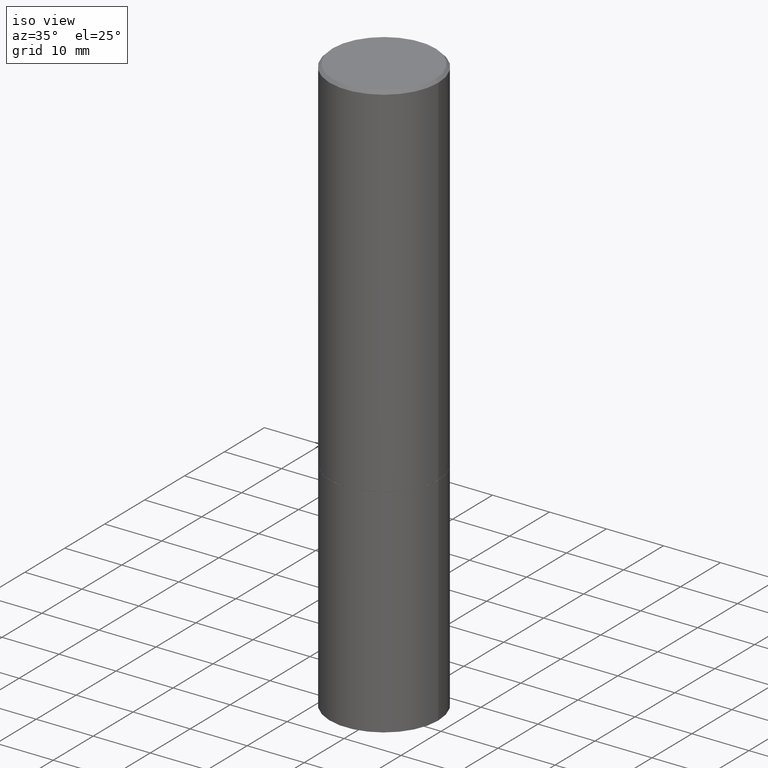
[diagram: clean part render]
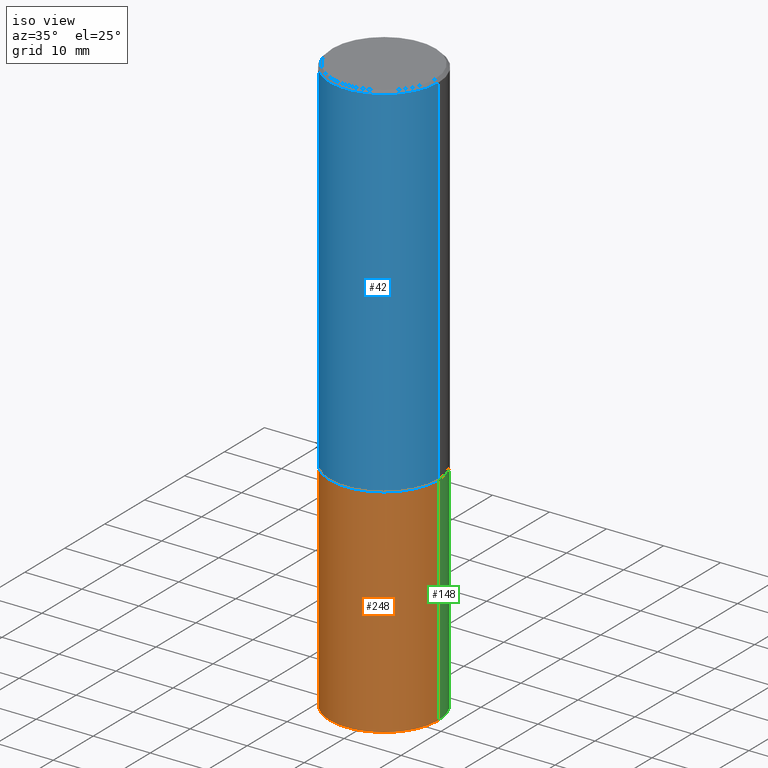
[diagram: same view with three faces highlighted in distinct colors, each labeled with its STEP entity id]
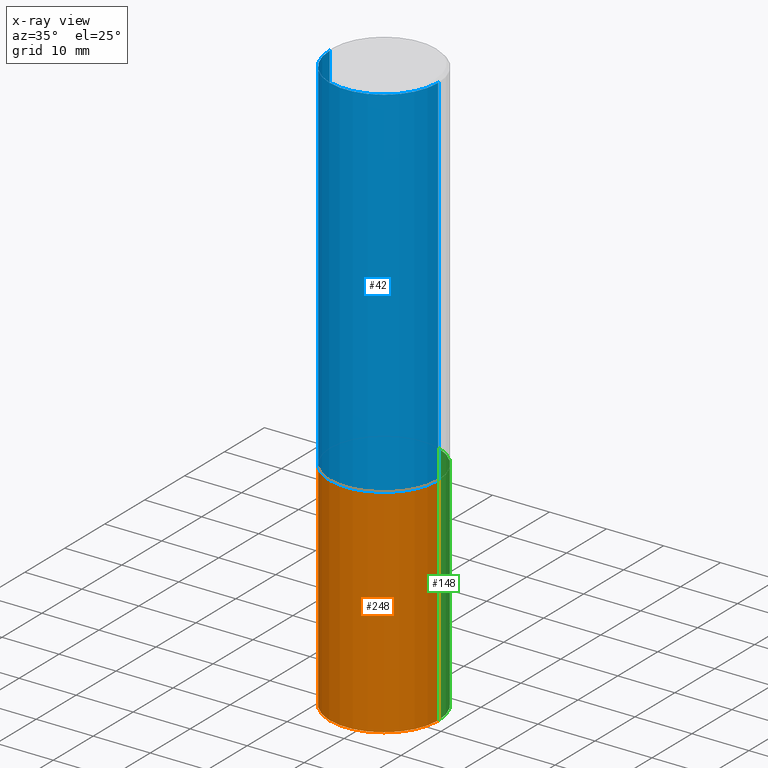
[diagram: x-ray of the same camera — body ghosted, the three highlighted faces saturated]
A machine part, iso view with three faces highlighted in distinct colors.
The next image is the same camera in x-ray (body ghosted, the three faces saturated) — at least one of them is partly hidden behind the body in this view.
Their STEP definitions:

[orange] entity #248 — the highlighted cylindrical surface (partial cylindrical patch) has radius 9.525 mm, axis along (-0, 0, 1).
#8 = ORIENTED_EDGE ( 'NONE', *, *, #340, .F. ) ;
#17 = CARTESIAN_POINT ( 'NONE',  ( 0.3750000000000000555, -2.618611004132350016E-15, 1.828566290923476203E-29 ) ) ;
#24 = EDGE_LOOP ( 'NONE', ( #8, #355, #74, #41 ) ) ;
#36 = VERTEX_POINT ( 'NONE', #204 ) ;
#41 = ORIENTED_EDGE ( 'NONE', *, *, #59, .F. ) ;
#43 = DIRECTION ( 'NONE',  ( -2.445468806185136877E-29, 3.491481338843145188E-15, 1.000000000000000000 ) ) ;
#59 = EDGE_CURVE ( 'NONE', #264, #149, #61, .T. ) ;
#61 = CIRCLE ( 'NONE', #363, 0.3750000000000000555 ) ;
#72 = VERTEX_POINT ( 'NONE', #253 ) ;
#74 = ORIENTED_EDGE ( 'NONE', *, *, #270, .T. ) ;
#77 = DIRECTION ( 'NONE',  ( 1.000000000000000000, -6.982962677686266711E-15, 0.000000000000000000 ) ) ;
#81 = DIRECTION ( 'NONE',  ( -2.445468806185136597E-29, 3.491481338843145583E-15, 1.000000000000000000 ) ) ;
#98 = CIRCLE ( 'NONE', #138, 0.3750000000000000555 ) ;
#101 = LINE ( 'NONE', #330, #152 ) ;
#108 = CARTESIAN_POINT ( 'NONE',  ( 9.781875224740546387E-29, -1.396592535537258233E-14, -4.000000000000000000 ) ) ;
#131 = LINE ( 'NONE', #17, #200 ) ;
#138 = AXIS2_PLACEMENT_3D ( 'NONE', #108, #221, #77 ) ;
#144 = DIRECTION ( 'NONE',  ( 1.000000000000000000, -6.982962677686264344E-15, 0.000000000000000000 ) ) ;
#149 = VERTEX_POINT ( 'NONE', #172 ) ;
#152 = VECTOR ( 'NONE', #43, 39.37007874015748143 ) ;
#172 = CARTESIAN_POINT ( 'NONE',  ( 0.3750000000000000555, -1.134731435124021338E-14, -2.500000000000000000 ) ) ;
#177 = AXIS2_PLACEMENT_3D ( 'NONE', #231, #284, #211 ) ;
#196 = CARTESIAN_POINT ( 'NONE',  ( -0.3750000000000000555, -8.682779092139847151E-15, -2.500000000000000000 ) ) ;
#200 = VECTOR ( 'NONE', #271, 39.37007874015748143 ) ;
#204 = CARTESIAN_POINT ( 'NONE',  ( 0.3750000000000000555, -1.658453635950493392E-14, -4.000000000000000000 ) ) ;
#211 = DIRECTION ( 'NONE',  ( 1.000000000000000000, -6.982962677686265922E-15, 4.876176775795935793E-29 ) ) ;
#221 = DIRECTION ( 'NONE',  ( -2.445468806185136597E-29, 3.491481338843145583E-15, 1.000000000000000000 ) ) ;
#231 = CARTESIAN_POINT ( 'NONE',  ( 0.000000000000000000, 0.000000000000000000, 0.000000000000000000 ) ) ;
#248 = ADVANCED_FACE ( 'NONE', ( #350 ), #315, .T. ) ;
#253 = CARTESIAN_POINT ( 'NONE',  ( -0.3750000000000000555, -8.682779092139847151E-15, -4.000000000000000000 ) ) ;
#258 = EDGE_CURVE ( 'NONE', #72, #36, #98, .T. ) ;
#264 = VERTEX_POINT ( 'NONE', #196 ) ;
#270 = EDGE_CURVE ( 'NONE', #36, #149, #131, .T. ) ;
#271 = DIRECTION ( 'NONE',  ( -2.445468806185136877E-29, 3.491481338843145188E-15, 1.000000000000000000 ) ) ;
#284 = DIRECTION ( 'NONE',  ( -2.445468806185136597E-29, 3.491481338843145583E-15, 1.000000000000000000 ) ) ;
#315 = CYLINDRICAL_SURFACE ( 'NONE', #177, 0.3750000000000000555 ) ;
#330 = CARTESIAN_POINT ( 'NONE',  ( -0.3750000000000000555, 2.664535259100376091E-15, -1.844600658845589598E-29 ) ) ;
#340 = EDGE_CURVE ( 'NONE', #72, #264, #101, .T. ) ;
#343 = CARTESIAN_POINT ( 'NONE',  ( 6.113672015462842613E-29, -8.728703347107864943E-15, -2.500000000000000000 ) ) ;
#350 = FACE_OUTER_BOUND ( 'NONE', #24, .T. ) ;
#355 = ORIENTED_EDGE ( 'NONE', *, *, #258, .T. ) ;
#363 = AXIS2_PLACEMENT_3D ( 'NONE', #343, #81, #144 ) ;

[blue] entity #42 — the highlighted cylindrical surface (partial cylindrical patch) has radius 9.525 mm, axis along (-0, 0, 1).
#4 = CARTESIAN_POINT ( 'NONE',  ( -0.3749999999999999445, -1.732985487172566723E-15, -2.499000000000000998 ) ) ;
#9 = EDGE_CURVE ( 'NONE', #67, #296, #132, .T. ) ;
#15 = VECTOR ( 'NONE', #269, 39.37007874015748143 ) ;
#28 = DIRECTION ( 'NONE',  ( -2.445468806185136597E-29, 3.491481338843145583E-15, 1.000000000000000000 ) ) ;
#38 = VERTEX_POINT ( 'NONE', #202 ) ;
#42 = ADVANCED_FACE ( 'NONE', ( #53 ), #169, .T. ) ;
#53 = FACE_OUTER_BOUND ( 'NONE', #247, .T. ) ;
#67 = VERTEX_POINT ( 'NONE', #4 ) ;
#68 = ORIENTED_EDGE ( 'NONE', *, *, #329, .T. ) ;
#85 = DIRECTION ( 'NONE',  ( -2.445468806185136877E-29, 3.491481338843145188E-15, 1.000000000000000000 ) ) ;
#97 = AXIS2_PLACEMENT_3D ( 'NONE', #111, #28, #174 ) ;
#99 = ORIENTED_EDGE ( 'NONE', *, *, #295, .T. ) ;
#109 = LINE ( 'NONE', #165, #15 ) ;
#111 = CARTESIAN_POINT ( 'NONE',  ( 0.000000000000000000, 0.000000000000000000, 0.000000000000000000 ) ) ;
#126 = DIRECTION ( 'NONE',  ( 1.000000000000000000, -6.982962677686266711E-15, 0.000000000000000000 ) ) ;
#132 = LINE ( 'NONE', #299, #137 ) ;
#137 = VECTOR ( 'NONE', #85, 39.37007874015748143 ) ;
#154 = CARTESIAN_POINT ( 'NONE',  ( 0.3749999999999996669, -2.642516375941185662E-15, -0.02000000000000007674 ) ) ;
#165 = CARTESIAN_POINT ( 'NONE',  ( 0.3749999999999998335, -2.618611004132348439E-15, 1.828566290923475082E-29 ) ) ;
#169 = CYLINDRICAL_SURFACE ( 'NONE', #97, 0.3749999999999998335 ) ;
#170 = CIRCLE ( 'NONE', #304, 0.3749999999999996669 ) ;
#174 = DIRECTION ( 'NONE',  ( 1.000000000000000000, -6.982962677686265922E-15, 4.876176775795935793E-29 ) ) ;
#182 = ORIENTED_EDGE ( 'NONE', *, *, #199, .F. ) ;
#199 = EDGE_CURVE ( 'NONE', #296, #215, #170, .T. ) ;
#202 = CARTESIAN_POINT ( 'NONE',  ( 0.3750000000000000555, -1.134382286990137353E-14, -2.499000000000000998 ) ) ;
#205 = CIRCLE ( 'NONE', #318, 0.3750000000000000555 ) ;
#215 = VERTEX_POINT ( 'NONE', #154 ) ;
#219 = DIRECTION ( 'NONE',  ( 1.000000000000000000, -6.982962677686264344E-15, 0.000000000000000000 ) ) ;
#241 = DIRECTION ( 'NONE',  ( -2.445468806185136597E-29, 3.491481338843145583E-15, 1.000000000000000000 ) ) ;
#247 = EDGE_LOOP ( 'NONE', ( #293, #99, #68, #182 ) ) ;
#267 = CARTESIAN_POINT ( 'NONE',  ( 6.111226546656659252E-29, -8.725211865769023513E-15, -2.499000000000000998 ) ) ;
#269 = DIRECTION ( 'NONE',  ( -2.445468806185136877E-29, 3.491481338843145188E-15, 1.000000000000000000 ) ) ;
#277 = CARTESIAN_POINT ( 'NONE',  ( 4.890937612370292426E-31, -6.982962677686317493E-17, -0.02000000000000007674 ) ) ;
#293 = ORIENTED_EDGE ( 'NONE', *, *, #9, .F. ) ;
#295 = EDGE_CURVE ( 'NONE', #67, #38, #205, .T. ) ;
#296 = VERTEX_POINT ( 'NONE', #337 ) ;
#299 = CARTESIAN_POINT ( 'NONE',  ( -0.3749999999999998335, 2.664535259100374514E-15, -1.844600658845588757E-29 ) ) ;
#304 = AXIS2_PLACEMENT_3D ( 'NONE', #277, #347, #126 ) ;
#318 = AXIS2_PLACEMENT_3D ( 'NONE', #267, #241, #219 ) ;
#329 = EDGE_CURVE ( 'NONE', #38, #215, #109, .T. ) ;
#337 = CARTESIAN_POINT ( 'NONE',  ( -0.3749999999999996669, 2.548781377355484352E-15, -0.02000000000000007674 ) ) ;
#347 = DIRECTION ( 'NONE',  ( -2.445468806185136597E-29, 3.491481338843145583E-15, 1.000000000000000000 ) ) ;

[green] entity #148 — the highlighted cylindrical surface (partial cylindrical patch) has radius 9.525 mm, axis along (-0, 0, 1).
#3 = CIRCLE ( 'NONE', #176, 0.3750000000000000555 ) ;
#17 = CARTESIAN_POINT ( 'NONE',  ( 0.3750000000000000555, -2.618611004132350016E-15, 1.828566290923476203E-29 ) ) ;
#22 = DIRECTION ( 'NONE',  ( -2.445468806185136597E-29, 3.491481338843145583E-15, 1.000000000000000000 ) ) ;
#30 = DIRECTION ( 'NONE',  ( 1.000000000000000000, -6.982962677686266711E-15, 0.000000000000000000 ) ) ;
#36 = VERTEX_POINT ( 'NONE', #204 ) ;
#43 = DIRECTION ( 'NONE',  ( -2.445468806185136877E-29, 3.491481338843145188E-15, 1.000000000000000000 ) ) ;
#52 = EDGE_CURVE ( 'NONE', #36, #72, #3, .T. ) ;
#64 = ORIENTED_EDGE ( 'NONE', *, *, #270, .F. ) ;
#72 = VERTEX_POINT ( 'NONE', #253 ) ;
#75 = DIRECTION ( 'NONE',  ( -2.445468806185136597E-29, 3.491481338843145583E-15, 1.000000000000000000 ) ) ;
#101 = LINE ( 'NONE', #330, #152 ) ;
#102 = CARTESIAN_POINT ( 'NONE',  ( 0.000000000000000000, 0.000000000000000000, 0.000000000000000000 ) ) ;
#122 = AXIS2_PLACEMENT_3D ( 'NONE', #102, #75, #342 ) ;
#131 = LINE ( 'NONE', #17, #200 ) ;
#133 = CARTESIAN_POINT ( 'NONE',  ( 6.113672015462842613E-29, -8.728703347107864943E-15, -2.500000000000000000 ) ) ;
#141 = ORIENTED_EDGE ( 'NONE', *, *, #52, .T. ) ;
#148 = ADVANCED_FACE ( 'NONE', ( #333 ), #358, .T. ) ;
#149 = VERTEX_POINT ( 'NONE', #172 ) ;
#152 = VECTOR ( 'NONE', #43, 39.37007874015748143 ) ;
#172 = CARTESIAN_POINT ( 'NONE',  ( 0.3750000000000000555, -1.134731435124021338E-14, -2.500000000000000000 ) ) ;
#176 = AXIS2_PLACEMENT_3D ( 'NONE', #225, #312, #30 ) ;
#196 = CARTESIAN_POINT ( 'NONE',  ( -0.3750000000000000555, -8.682779092139847151E-15, -2.500000000000000000 ) ) ;
#200 = VECTOR ( 'NONE', #271, 39.37007874015748143 ) ;
#204 = CARTESIAN_POINT ( 'NONE',  ( 0.3750000000000000555, -1.658453635950493392E-14, -4.000000000000000000 ) ) ;
#225 = CARTESIAN_POINT ( 'NONE',  ( 9.781875224740546387E-29, -1.396592535537258233E-14, -4.000000000000000000 ) ) ;
#233 = CIRCLE ( 'NONE', #273, 0.3750000000000000555 ) ;
#253 = CARTESIAN_POINT ( 'NONE',  ( -0.3750000000000000555, -8.682779092139847151E-15, -4.000000000000000000 ) ) ;
#260 = EDGE_LOOP ( 'NONE', ( #141, #319, #322, #64 ) ) ;
#264 = VERTEX_POINT ( 'NONE', #196 ) ;
#270 = EDGE_CURVE ( 'NONE', #36, #149, #131, .T. ) ;
#271 = DIRECTION ( 'NONE',  ( -2.445468806185136877E-29, 3.491481338843145188E-15, 1.000000000000000000 ) ) ;
#273 = AXIS2_PLACEMENT_3D ( 'NONE', #133, #22, #335 ) ;
#300 = EDGE_CURVE ( 'NONE', #149, #264, #233, .T. ) ;
#312 = DIRECTION ( 'NONE',  ( -2.445468806185136597E-29, 3.491481338843145583E-15, 1.000000000000000000 ) ) ;
#319 = ORIENTED_EDGE ( 'NONE', *, *, #340, .T. ) ;
#322 = ORIENTED_EDGE ( 'NONE', *, *, #300, .F. ) ;
#330 = CARTESIAN_POINT ( 'NONE',  ( -0.3750000000000000555, 2.664535259100376091E-15, -1.844600658845589598E-29 ) ) ;
#333 = FACE_OUTER_BOUND ( 'NONE', #260, .T. ) ;
#335 = DIRECTION ( 'NONE',  ( 1.000000000000000000, -6.982962677686264344E-15, 0.000000000000000000 ) ) ;
#340 = EDGE_CURVE ( 'NONE', #72, #264, #101, .T. ) ;
#342 = DIRECTION ( 'NONE',  ( 1.000000000000000000, -6.982962677686265922E-15, 4.876176775795935793E-29 ) ) ;
#358 = CYLINDRICAL_SURFACE ( 'NONE', #122, 0.3750000000000000555 ) ;